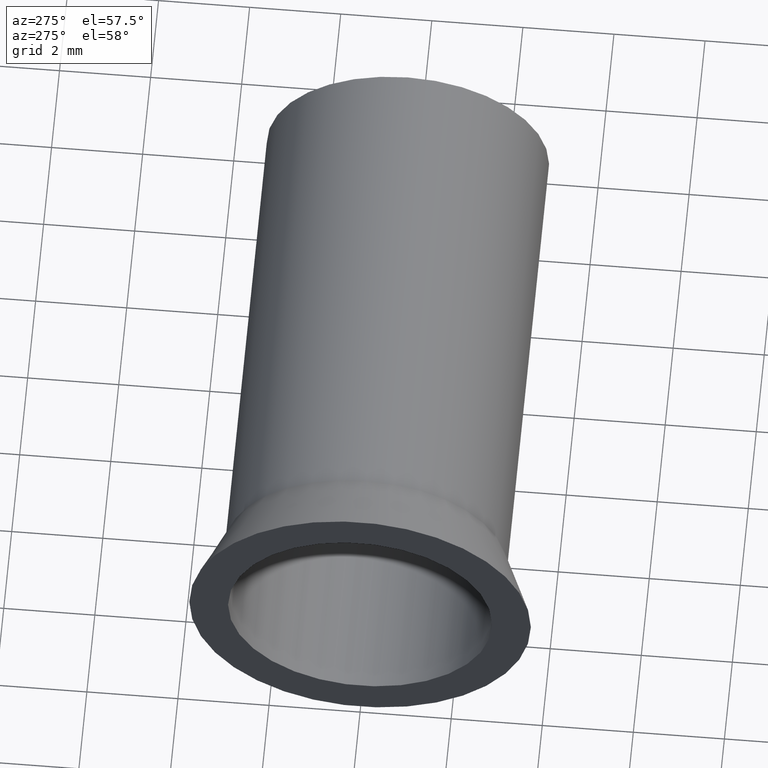
[diagram: clean part render]
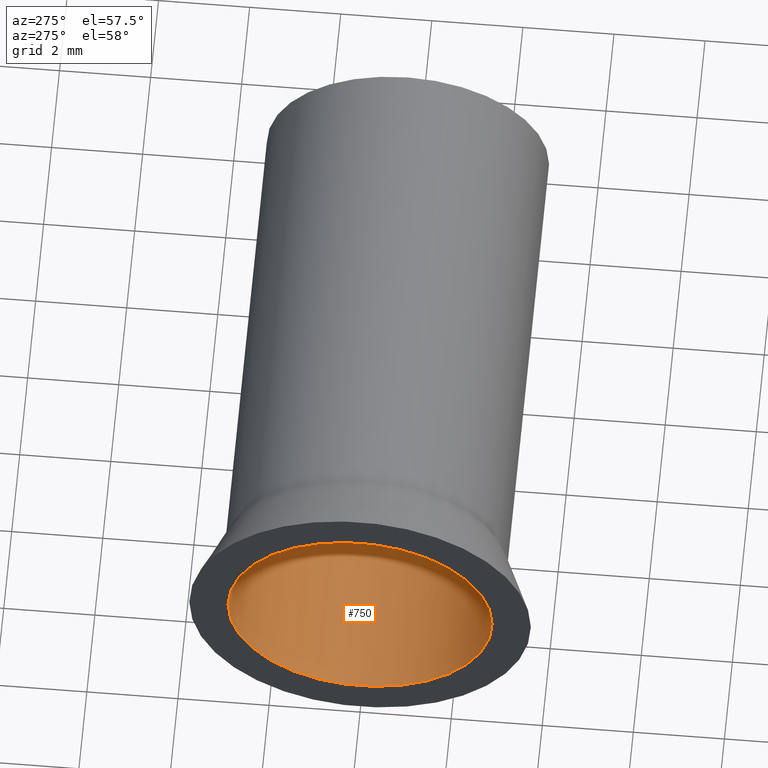
[diagram: same view with one face highlighted and labeled with its STEP entity id]
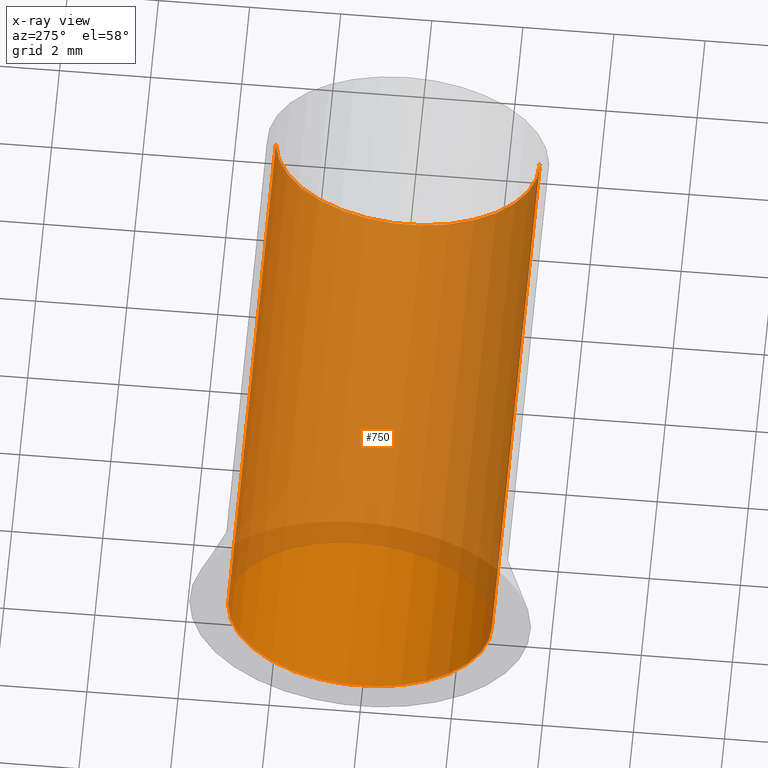
[diagram: x-ray of the same camera — body ghosted, the highlighted face saturated]
A machine part, auxiliary view. The second image highlights one B-rep face of the part: STEP entity #750.
The next image is the same camera in x-ray: the body ghosted, the highlighted face saturated — about 75% of this face is hidden behind the body in this view.
In plain terms, the highlighted cylindrical surface (partial cylindrical patch) has radius 2.9 mm, axis along (-1, 0, 0).
Its self-contained STEP definition (entity closure, byte-faithful):
#60=CARTESIAN_POINT('',(0.,0.,0.));
#70=DIRECTION('',(1.,0.,0.));
#80=DIRECTION('',(0.,1.,0.));
#90=AXIS2_PLACEMENT_3D('',#60,#70,#80);
#100=CIRCLE('',#90,2.9);
#110=CARTESIAN_POINT('',(0.,2.9,0.));
#120=VERTEX_POINT('',#110);
#130=CARTESIAN_POINT('',(0.,-2.9,-3.55147571752732E-16));
#140=VERTEX_POINT('',#130);
#170=EDGE_CURVE('',#140,#120,#100,.T.);
#440=CARTESIAN_POINT('',(6.,0.,0.));
#450=DIRECTION('',(-1.,0.,0.));
#460=DIRECTION('',(0.,1.,0.));
#470=AXIS2_PLACEMENT_3D('',#440,#450,#460);
#480=CYLINDRICAL_SURFACE('',#470,2.9);
#490=CARTESIAN_POINT('',(6.,-2.9,-3.55147571752732E-16));
#500=DIRECTION('',(-1.,0.,0.));
#510=VECTOR('',#500,1.);
#520=LINE('',#490,#510);
#530=CARTESIAN_POINT('',(12.,-2.9,-3.55147571752732E-16));
#540=VERTEX_POINT('',#530);
#550=EDGE_CURVE('',#540,#140,#520,.T.);
#560=ORIENTED_EDGE('',*,*,#550,.F.);
#570=ORIENTED_EDGE('',*,*,#170,.F.);
#580=CARTESIAN_POINT('',(6.,2.9,0.));
#590=DIRECTION('',(-1.,0.,0.));
#600=VECTOR('',#590,1.);
#610=LINE('',#580,#600);
#620=CARTESIAN_POINT('',(12.,2.9,0.));
#630=VERTEX_POINT('',#620);
#640=EDGE_CURVE('',#630,#120,#610,.T.);
#650=ORIENTED_EDGE('',*,*,#640,.T.);
#660=CARTESIAN_POINT('',(12.,0.,0.));
#670=DIRECTION('',(1.,0.,0.));
#680=DIRECTION('',(0.,1.,0.));
#690=AXIS2_PLACEMENT_3D('',#660,#670,#680);
#700=CIRCLE('',#690,2.9);
#710=EDGE_CURVE('',#540,#630,#700,.T.);
#720=ORIENTED_EDGE('',*,*,#710,.T.);
#730=EDGE_LOOP('',(#720,#650,#570,#560));
#740=FACE_OUTER_BOUND('',#730,.T.);
#750=ADVANCED_FACE('',(#740),#480,.F.);